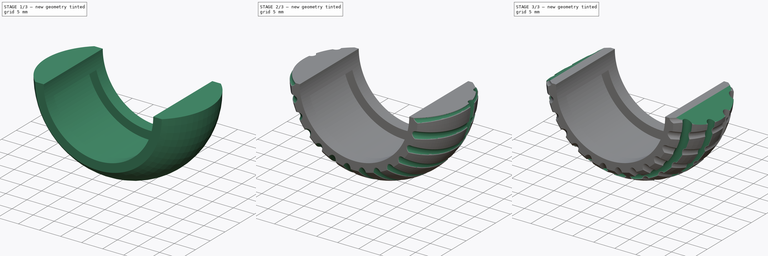
[diagram: build sequence overview — one tinted view per stage of 3, left to right]
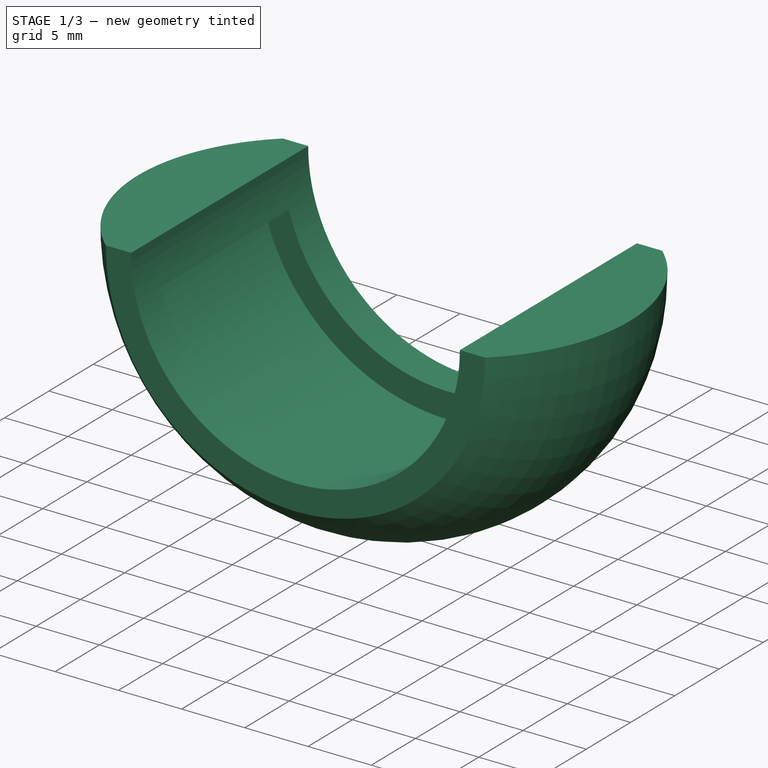
[diagram: stage 1 of 3 — iso view after this stage's code; geometry added in this stage tinted green]
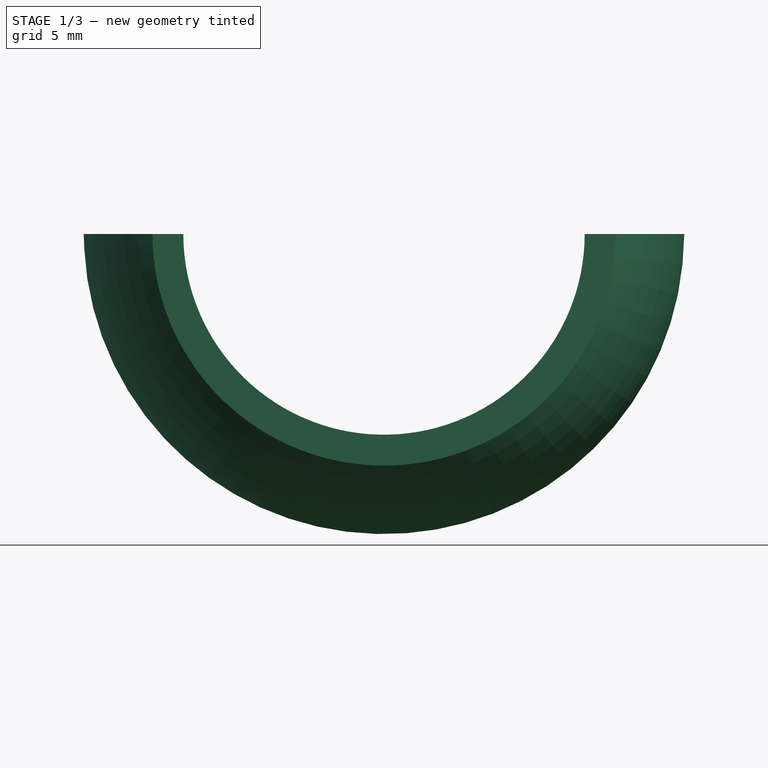
[diagram: stage 1 of 3 — front view after this stage's code; geometry added in this stage tinted green]
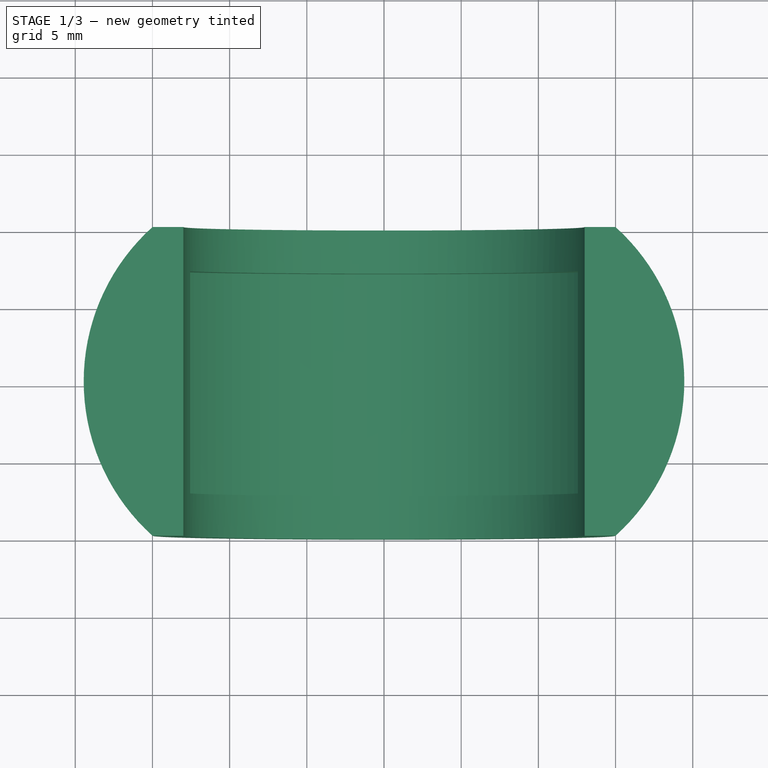
[diagram: stage 1 of 3 — top view after this stage's code; geometry added in this stage tinted green]
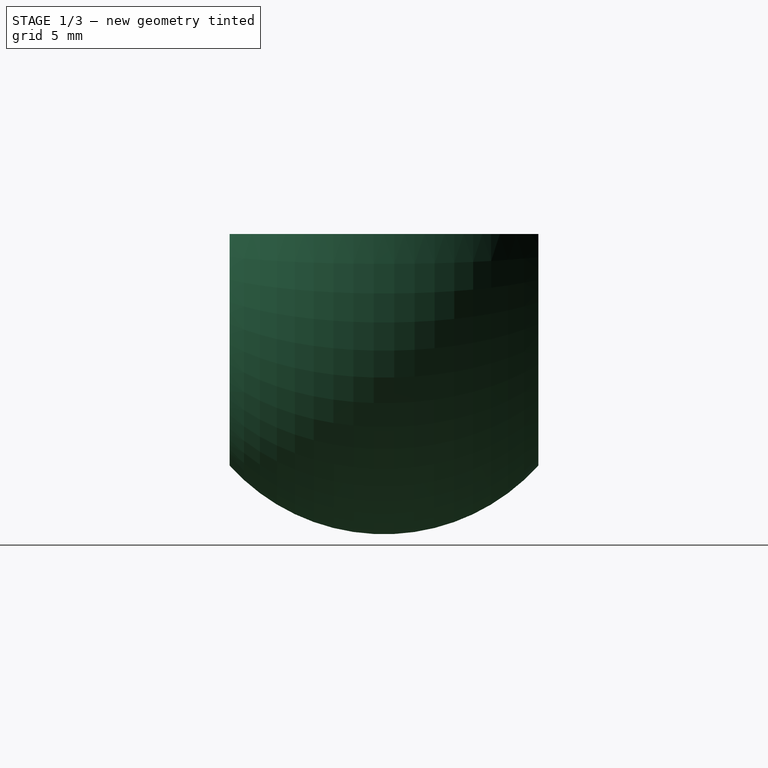
[diagram: stage 1 of 3 — right view after this stage's code; geometry added in this stage tinted green]
FCSTD DOCUMENT  (FreeCAD 1.0R38806 (Git))
Label: foot
License: All rights reserved
LicenseURL: https://en.wikipedia.org/wiki/All_rights_reserved
objects: Sketcher::SketchObject×5, PartDesign::Groove×3, PartDesign::Revolution×1, PartDesign::Line×1, PartDesign::PolarPattern×1, PartDesign::Mirrored×1, PartDesign::Pocket×1, PartDesign::Body×1
note: 31 computed .brp shape members not serialized (recipe doc carries the construction recipe); baked Part::Feature solids carry a one-line shape summary decoded from their .brp

FEATURE [Sketcher::SketchObject] Sketch  label="sk_base"
  ArcFitTolerance = 1e-06
  AttachmentSupport = -> [YZ_Plane]
  FullyConstrained = true
  MakeInternals = false
  MapMode = 5
  Placement = pos=(0,0,0) rot=(0.57735,0.57735,0.57735;2.0944rad)
  sketch-geometry (4):
    g0: LineSegment StartX=-10 StartY=-13 StartZ=0 EndX=10 EndY=-13 EndZ=0
    g1: LineSegment StartX=10 StartY=-13 StartZ=0 EndX=10 EndY=-15 EndZ=0
    g2: ArcOfCircle CenterX=0 CenterY=-6 CenterZ=0 NormalX=0 NormalY=0 NormalZ=1 AngleXU=0 Radius=13.4536 StartAngle=3.87441 EndAngle=5.55037
    g3: LineSegment StartX=-10 StartY=-15 StartZ=0 EndX=-10 EndY=-13 EndZ=0
  constraints (12):
    c: Coincident(g0,g1)
    c: Vertical(g1)
    c: Coincident(g3,g0)
    c: Vertical(g3)
    c: Distance(g0,g0) = 20  'width'
    c: Symmetric(g0,g0,g-2)
    c: Distance(g-1,g0) = 13  'inner_rad'
    c: Coincident(g1,g2)
    c: Coincident(g2,g3)
    c: Distance(g1,g1) = 2  'height'
    c: PointOnObject(g2,g-2)
    c: Distance(g2,g-1) = 6  'pos_circ'
FEATURE [PartDesign::Revolution] Revolution  label="rev_base"
  Angle = 180
  Angle2 = 60
  Axis = (1e-16,1,-1e-16)
  Base = (0,0,0)
  Midplane = true
  Placement = pos=(0,0,0) rot=(1,1,1;2.0944rad)
  Profile = -> Sketch
  ReferenceAxis = -> Y_Axis
  Refine = true
  Suppressed = false
  Type = 0
FEATURE [Sketcher::SketchObject] Sketch001  label="sk_mount"
  ArcFitTolerance = 1e-06
  AttachmentSupport = -> [YZ_Plane]
  ExternalGeometry = -> [Sketch]
  FullyConstrained = true
  MakeInternals = false
  MapMode = 5
  Placement = pos=(0,0,0) rot=(0.57735,0.57735,0.57735;2.0944rad)
  sketch-geometry (4):
    g0: LineSegment StartX=-7.2 StartY=-13 StartZ=0 EndX=-7.2 EndY=-15 EndZ=0
    g1: LineSegment StartX=-7.2 StartY=-15 StartZ=0 EndX=7.2 EndY=-15 EndZ=0
    g2: LineSegment StartX=7.2 StartY=-15 StartZ=0 EndX=7.2 EndY=-13 EndZ=0
    g3: LineSegment StartX=7.2 StartY=-13 StartZ=0 EndX=-7.2 EndY=-13 EndZ=0
  constraints (11):
    c: Coincident(g0,g1)
    c: Coincident(g1,g2)
    c: Coincident(g2,g3)
    c: Coincident(g3,g0)
    c: Vertical(g0)
    c: Vertical(g2)
    c: Horizontal(g1)
    c: PointOnObject(g0,g-3)
    c: Symmetric(g2,g0,g-2)
    c: DistanceX(g3,g3) = 14.4  'width'
    c: Distance(g2,g2) = 2  'height'
FEATURE [PartDesign::Groove] Groove  label="groove_mount"
  Angle = 150
  Angle2 = 60
  Axis = (1e-16,1,-1e-16)
  Base = (0,0,0)
  BaseFeature = -> Revolution
  Midplane = true
  Placement = pos=(0,0,0) rot=(1,1,1;2.0944rad)
  Profile = -> Sketch001
  ReferenceAxis = -> Y_Axis
  Refine = true
  Suppressed = false
  Type = 0
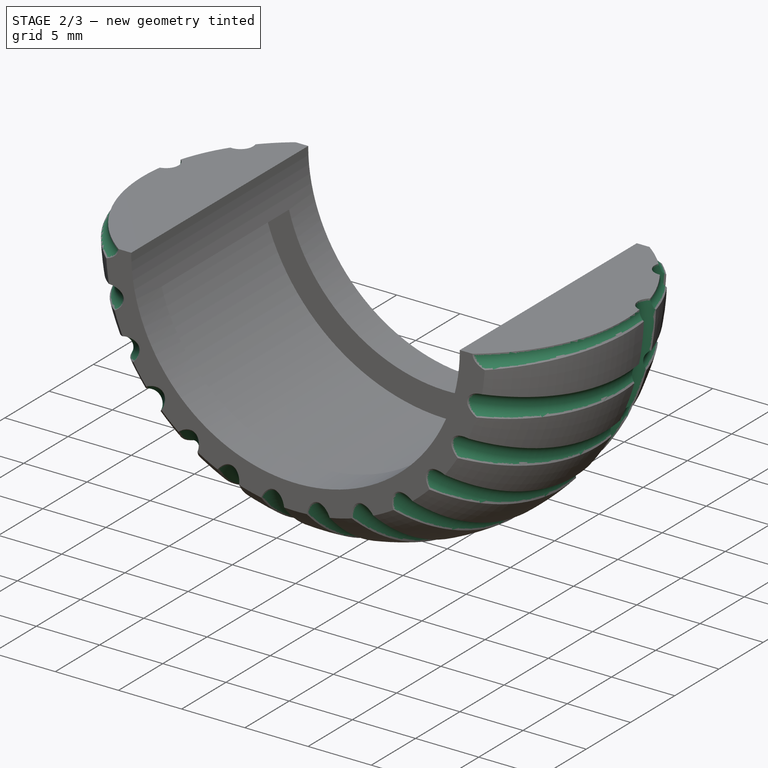
[diagram: stage 2 of 3 — iso view after this stage's code; geometry added in this stage tinted green]
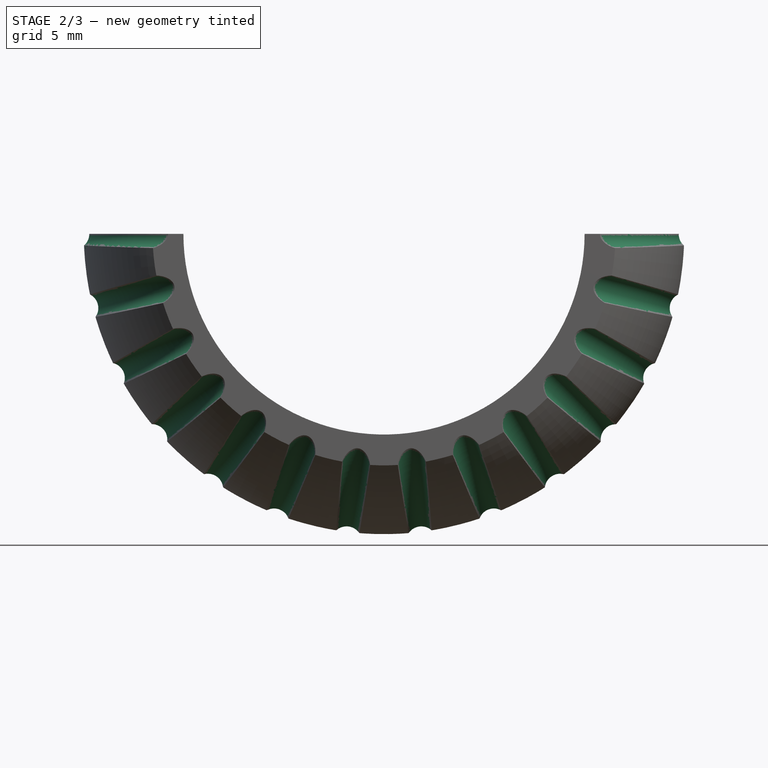
[diagram: stage 2 of 3 — front view after this stage's code; geometry added in this stage tinted green]
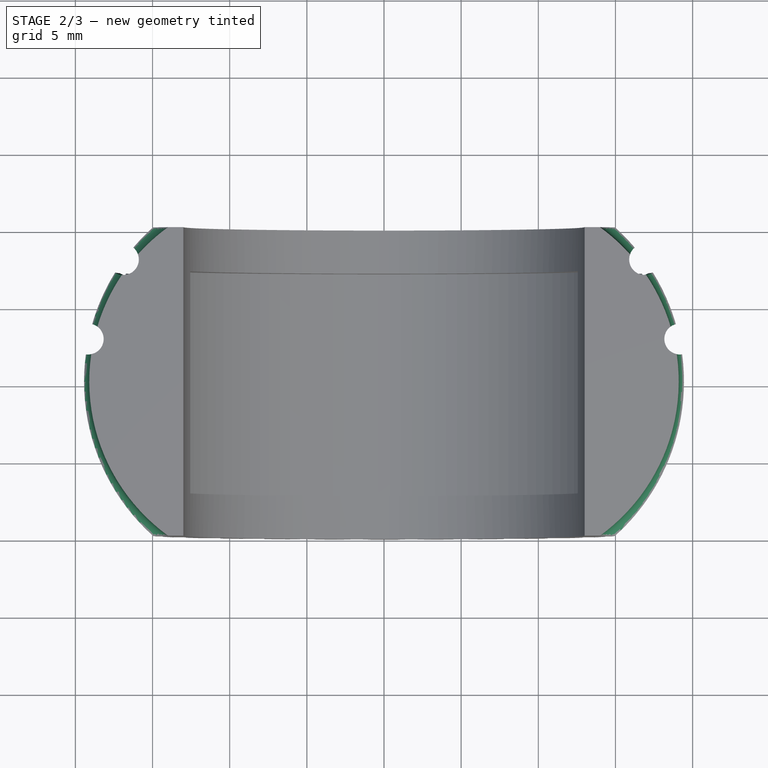
[diagram: stage 2 of 3 — top view after this stage's code; geometry added in this stage tinted green]
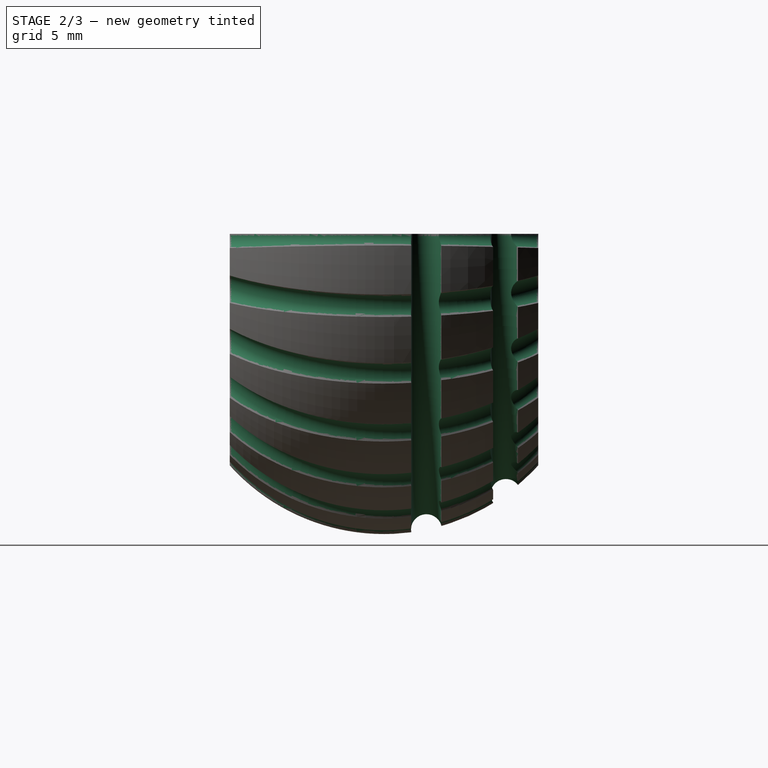
[diagram: stage 2 of 3 — right view after this stage's code; geometry added in this stage tinted green]
FEATURE [Sketcher::SketchObject] Sketch002  label="sk_transverse"
  ArcFitTolerance = 1e-06
  AttachmentSupport = -> [XZ_Plane]
  FullyConstrained = true
  MakeInternals = false
  MapMode = 5
  Placement = pos=(0,0,0) rot=(1,0,0;1.5708rad)
  sketch-geometry (1):
    g0: Circle CenterX=20.1 CenterY=0 CenterZ=0 NormalX=0 NormalY=0 NormalZ=1 AngleXU=0 Radius=1
  constraints (3):
    c: PointOnObject(g0,g-1)
    c: DistanceX(g-1,g0) = 20.1  'position'
    c: Radius(g0) = 1  'rad'
FEATURE [PartDesign::Line] DatumLine  label="rotation_axis_transverse"
  AttacherType = Attacher::AttachEngineLine
  AttachmentOffset = pos=(6.75,0,0) rot=(0,0,1;0.017453rad)
  AttachmentSupport = -> [Z_Axis]
  Length = 20
  MapMode = 29
  Placement = pos=(6.75,0,0) rot=(0,0,1;0.017453rad)
  ResizeMode = 0
FEATURE [PartDesign::Groove] Groove001  label="groove_transverse"
  Angle = 120
  Angle2 = 60
  Axis = (0,0,1)
  Base = (6.75,0,0)
  BaseFeature = -> Groove
  Midplane = true
  Placement = pos=(0,0,0) rot=(1,1,1;2.0944rad)
  Profile = -> Sketch002
  ReferenceAxis = -> DatumLine
  Refine = true
  Suppressed = false
  Type = 0
FEATURE [PartDesign::PolarPattern] PolarPattern  label="polar_transverse"
  Angle = 180
  Axis = -> Y_Axis
  BaseFeature = -> Groove001
  Mode = 0
  Occurrences = 14
  Offset = 120
  Originals = -> [Groove001]
  Placement = pos=(0,0,0) rot=(1,1,1;2.0944rad)
  Refine = true
  Suppressed = false
  TransformMode = 0
FEATURE [Sketcher::SketchObject] Sketch003  label="sk_longitudinal"
  ArcFitTolerance = 1e-06
  AttachmentSupport = -> [YZ_Plane]
  ExternalGeometry = -> [Sketch]
  FullyConstrained = true
  MakeInternals = false
  MapMode = 5
  Placement = pos=(0,0,0) rot=(0.57735,0.57735,0.57735;2.0944rad)
  sketch-geometry (2):
    g0: Circle CenterX=2.75 CenterY=-19.1696 CenterZ=0 NormalX=0 NormalY=0 NormalZ=1 AngleXU=0 Radius=1
    g1: Circle CenterX=7.9 CenterY=-16.8899 CenterZ=0 NormalX=0 NormalY=0 NormalZ=1 AngleXU=0 Radius=1
  constraints (6):
    c: Equal(g0,g1)
    c: PointOnObject(g0,g-3)
    c: PointOnObject(g1,g-3)
    c: Distance(g1,g-2) = 7.9  'outer_pos'
    c: Distance(g0,g-2) = 2.75  'inner_pos'
    c: Radius(g1) = 1  'rad'
FEATURE [PartDesign::Groove] Groove002  label="groove_longitudinal"
  Angle = 180
  Angle2 = 60
  Axis = (1e-16,1,-1e-16)
  Base = (0,0,0)
  BaseFeature = -> PolarPattern
  Midplane = true
  Placement = pos=(0,0,0) rot=(1,1,1;2.0944rad)
  Profile = -> Sketch003
  ReferenceAxis = -> Y_Axis
  Refine = true
  Suppressed = false
  Type = 0
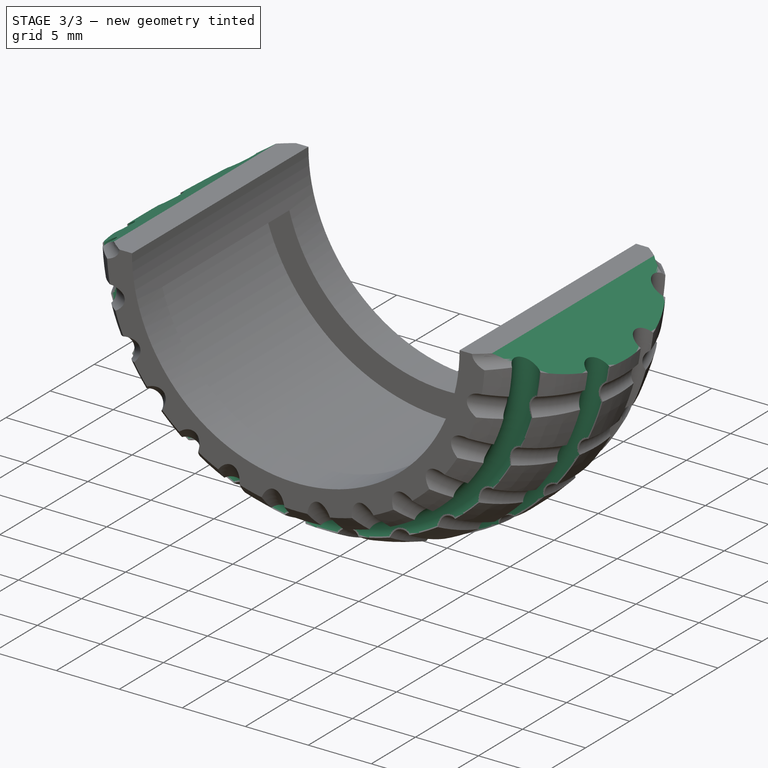
[diagram: stage 3 of 3 — iso view after this stage's code; geometry added in this stage tinted green]
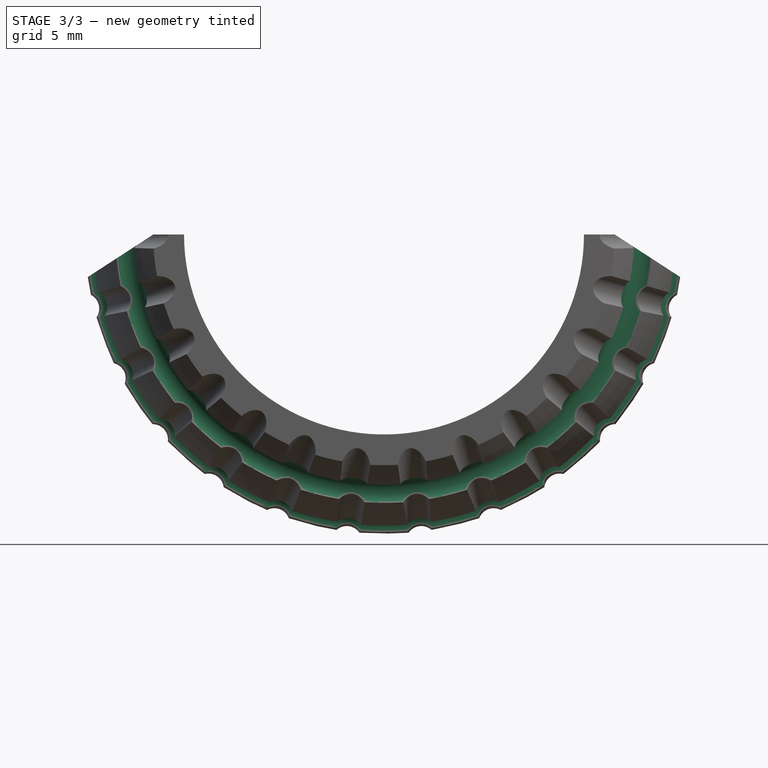
[diagram: stage 3 of 3 — front view after this stage's code; geometry added in this stage tinted green]
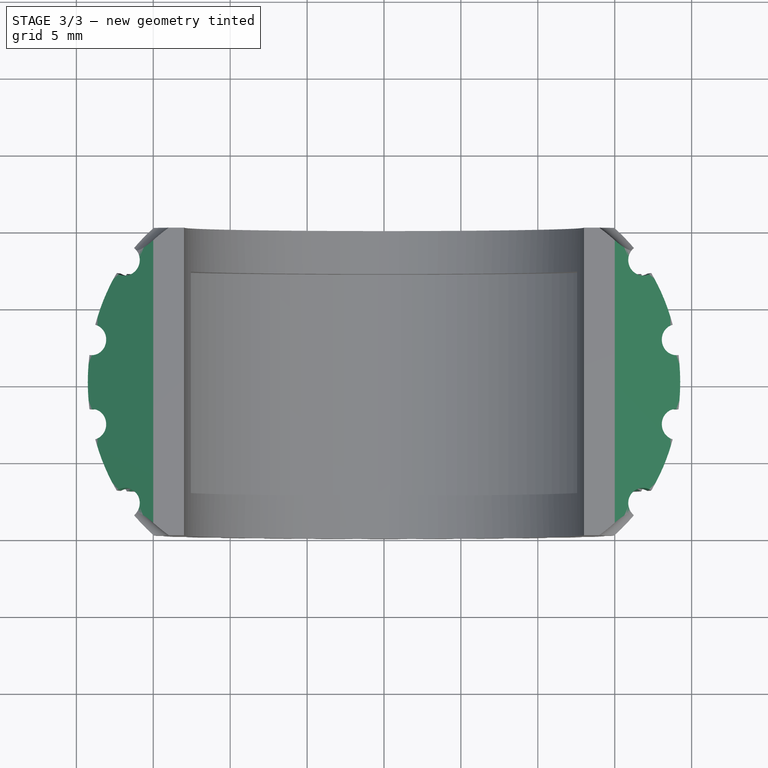
[diagram: stage 3 of 3 — top view after this stage's code; geometry added in this stage tinted green]
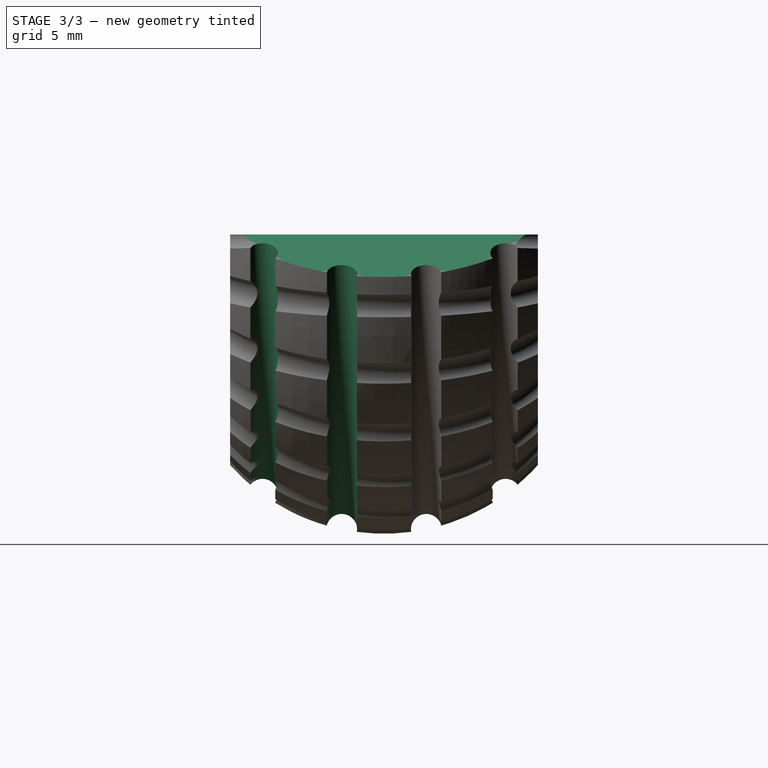
[diagram: stage 3 of 3 — right view after this stage's code; geometry added in this stage tinted green]
FEATURE [Sketcher::SketchObject] Sketch004  label="sk_notch"
  ArcFitTolerance = 1e-06
  AttachmentSupport = -> [XZ_Plane]
  FullyConstrained = true
  MakeInternals = false
  MapMode = 5
  Placement = pos=(0,0,0) rot=(1,0,0;1.5708rad)
  sketch-geometry (6):
    g0: LineSegment StartX=15 StartY=0 StartZ=0 EndX=19.5 EndY=-2.92233 EndZ=0
    g1: LineSegment StartX=15 StartY=0 StartZ=0 EndX=19.5 EndY=0 EndZ=0
    g2: LineSegment StartX=19.5 StartY=0 StartZ=0 EndX=19.5 EndY=-2.92233 EndZ=0
    g3: LineSegment StartX=-15 StartY=0 StartZ=0 EndX=-19.5 EndY=0 EndZ=0
    g4: LineSegment StartX=-19.5 StartY=0 StartZ=0 EndX=-19.5 EndY=-2.92233 EndZ=0
    g5: LineSegment StartX=-19.5 StartY=-2.92233 StartZ=0 EndX=-15 EndY=0 EndZ=0
  constraints (17):
    c: PointOnObject(g0,g-1)
    c: PointOnObject(g1,g-1)
    c: Coincident(g1,g0)
    c: DistanceX(g1,g1) = 4.5  'width'
    c: DistanceX(g-1,g0) = 15  'position'
    c: Angle(g0,g1) = 0.575959  'angle'
    c: Coincident(g2,g1)
    c: Coincident(g2,g0)
    c: Vertical(g2)
    c: PointOnObject(g3,g-1)
    c: Coincident(g4,g3)
    c: Vertical(g4)
    c: Coincident(g5,g4)
    c: Coincident(g5,g3)
    c: Symmetric(g0,g3,g-2)
    c: Equal(g3,g1)
    c: Equal(g4,g2)
FEATURE [PartDesign::Mirrored] Mirrored  label="mirror_longitudinal"
  BaseFeature = -> Groove002
  MirrorPlane = -> Sketch003 [V_Axis]
  Originals = -> [Groove002]
  Placement = pos=(0,0,0) rot=(1,1,1;2.0944rad)
  Refine = true
  Suppressed = false
  TransformMode = 0
FEATURE [PartDesign::Pocket] Pocket  label="pocket_notch"
  BaseFeature = -> Mirrored
  Direction = (0,1,-2e-16)
  Length = 5
  Length2 = 5
  Midplane = true
  Placement = pos=(0,0,0) rot=(1,1,1;2.0944rad)
  Profile = -> Sketch004
  ReferenceAxis = -> Sketch004 [N_Axis]
  Refine = true
  Suppressed = false
  Type = 1
FEATURE [PartDesign::Body] Body  label="foot"
  AllowCompound = false
  Group = -> [DatumLine,Sketch,Revolution,Sketch001,Groove,Sketch002,Groove001,PolarPattern,Sketch003,Groove002,Mirrored,Sketch004,Pocket]
  Origin = -> Origin
  Tip = -> Pocket
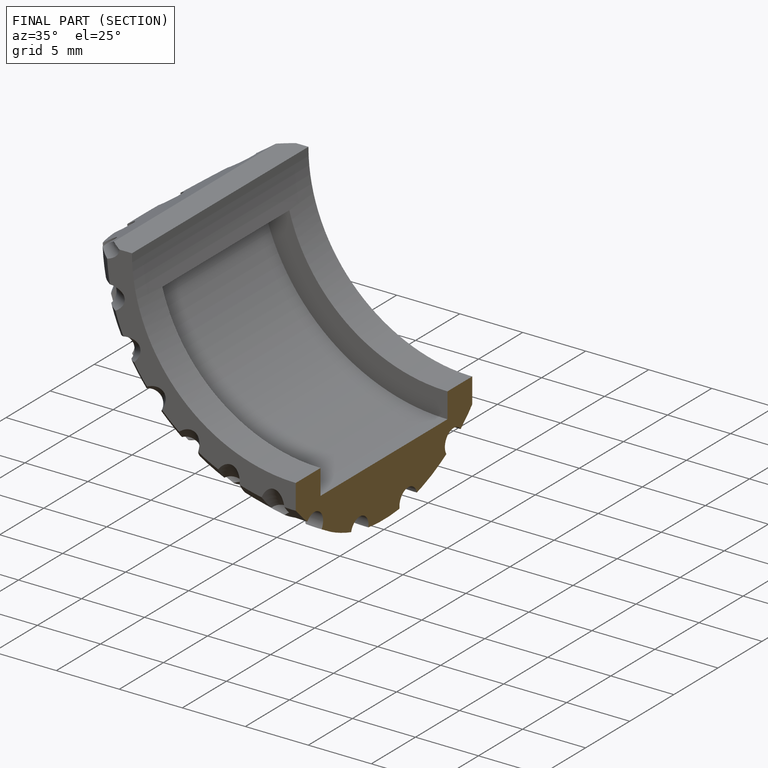
[diagram: finished part — half-section view (interior)]
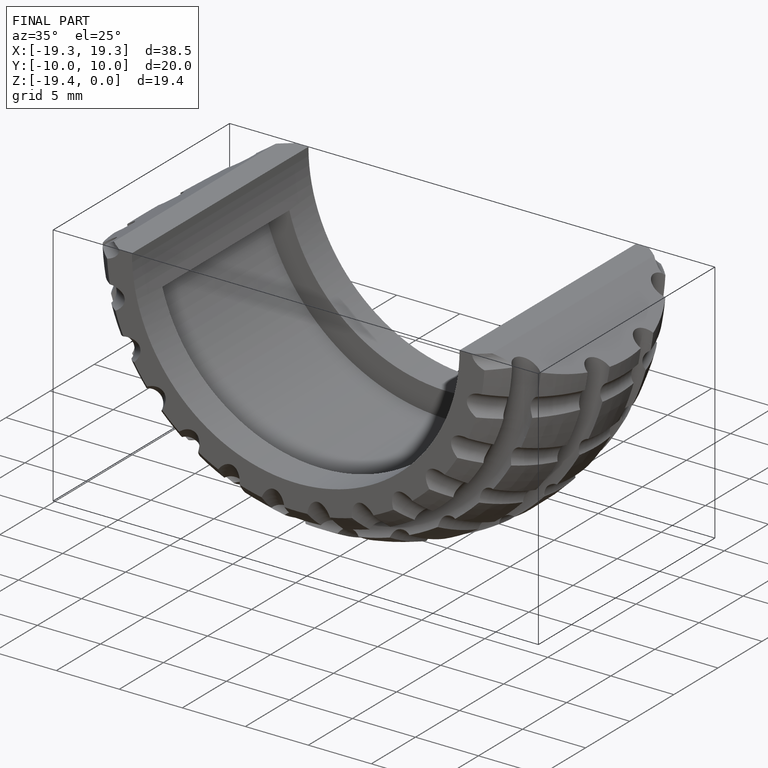
[diagram: finished part — iso view with bounding-box wireframe]
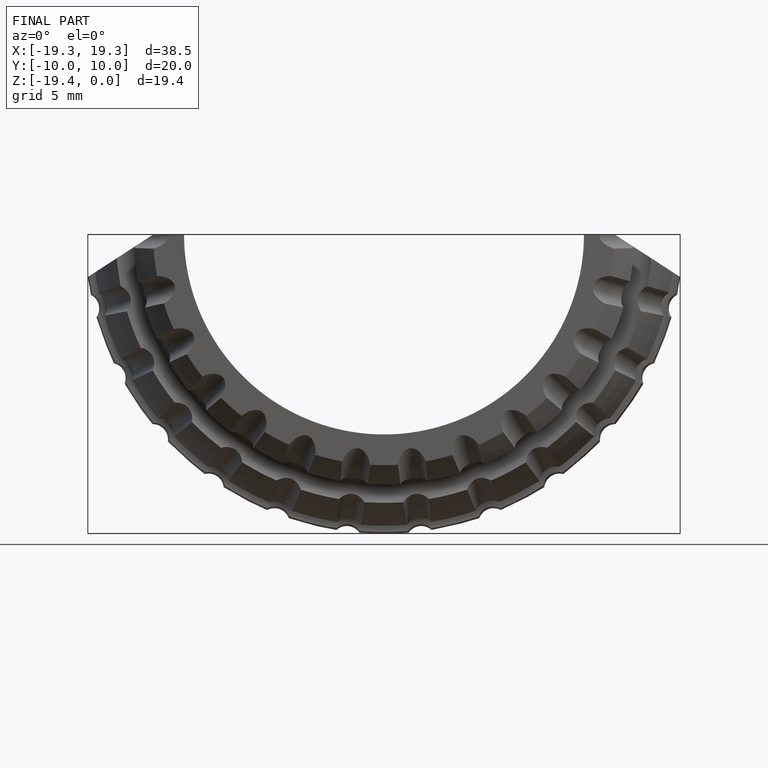
[diagram: finished part — front view with bounding-box wireframe]
